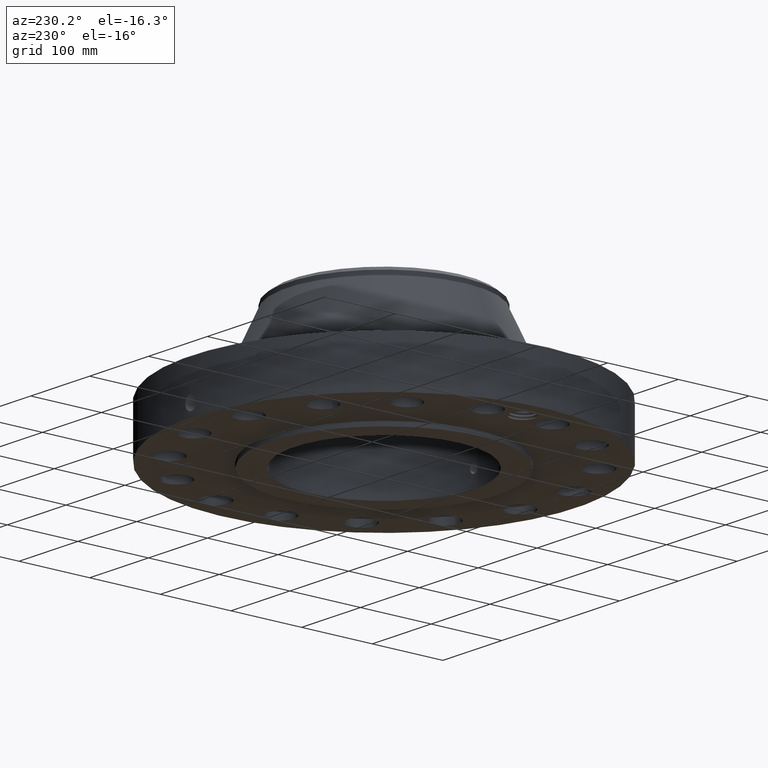
[diagram: clean part render]
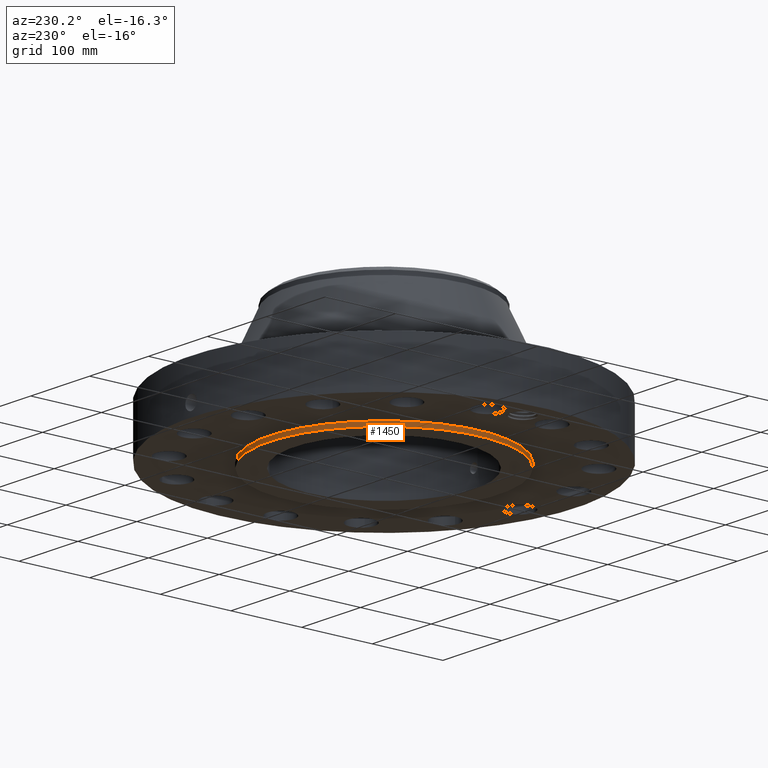
[diagram: same view with one face highlighted and labeled with its STEP entity id]
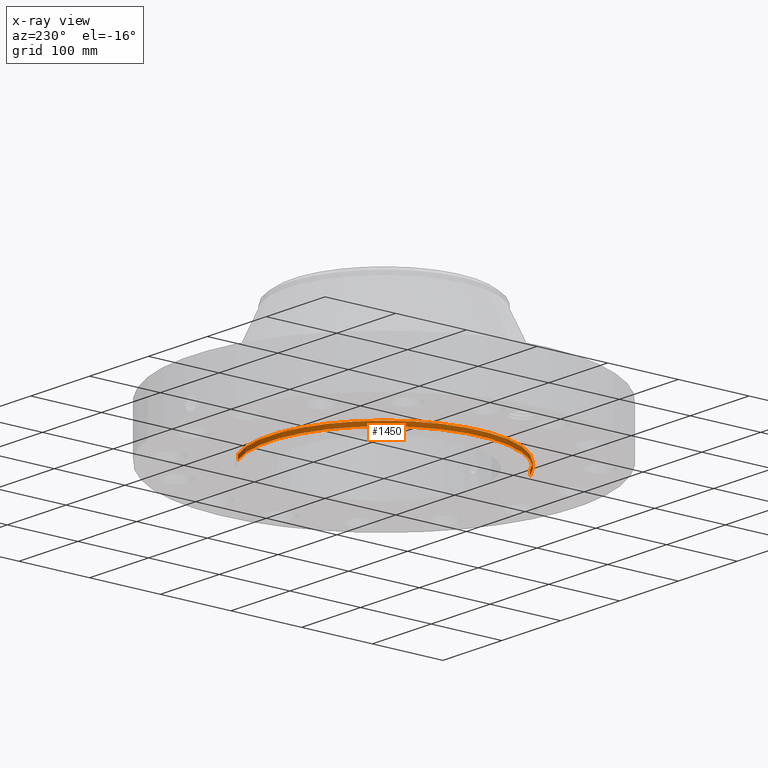
[diagram: x-ray of the same camera — body ghosted, the highlighted face saturated]
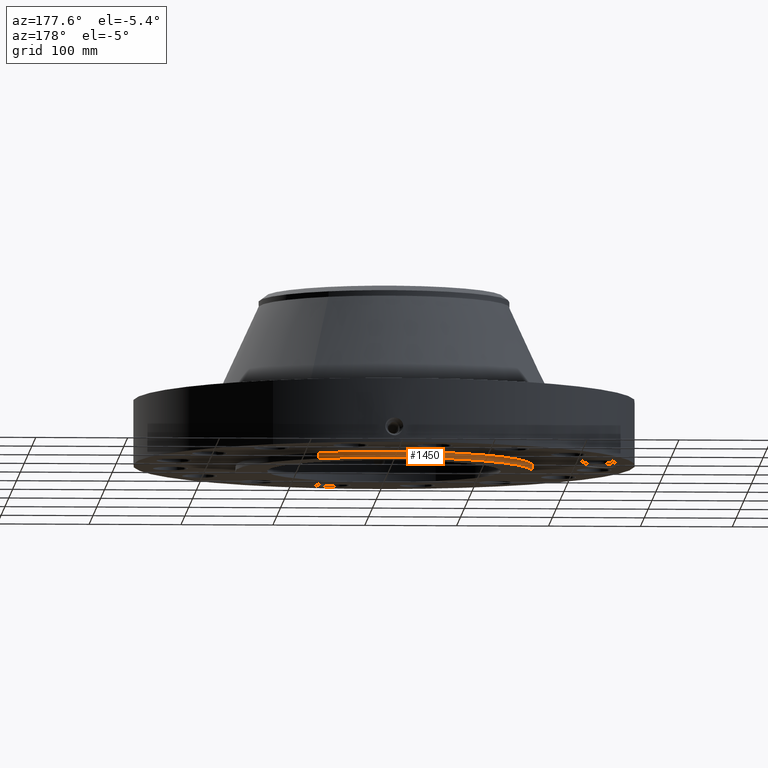
[diagram: same view with one face highlighted and labeled with its STEP entity id]
A machine part, auxiliary view. The second image highlights one B-rep face of the part: STEP entity #1450.
The next image is the same camera in x-ray: the body ghosted, the highlighted face saturated — about 0% of this face is hidden behind the body in this view.
A second angle (auxiliary view) of the same face is appended — the face is thin or edge-on in the first view.
In plain terms, the highlighted cylindrical surface (partial cylindrical patch) has radius 161.925 mm, axis along (0, 0, -1).
Its self-contained STEP definition (entity closure, byte-faithful):
#262=AXIS2_PLACEMENT_3D('Circle Axis2P3D',#260,#261,$) ;
#1411=AXIS2_PLACEMENT_3D('Cylinder Axis2P3D',#1408,#1409,#1410) ;
#1441=AXIS2_PLACEMENT_3D('Circle Axis2P3D',#1439,#1440,$) ;
#255=CARTESIAN_POINT('Vertex',(3.05633780861,5.59458883207,0.250000000001)) ;
#257=CARTESIAN_POINT('Vertex',(-3.05633780861,-5.59458883207,0.250000000001)) ;
#260=CARTESIAN_POINT('Axis2P3D Location',(0.,0.,0.250000000001)) ;
#1408=CARTESIAN_POINT('Axis2P3D Location',(0.,0.,3.75000000001)) ;
#1417=CARTESIAN_POINT('Vertex',(3.05633780861,5.59458883207,5.59482469102E-016)) ;
#1419=CARTESIAN_POINT('Vertex',(-3.05633780861,-5.59458883207,5.59482469102E-016)) ;
#1422=CARTESIAN_POINT('Line Origine',(3.05633780861,5.59458883207,0.125000000001)) ;
#1427=CARTESIAN_POINT('Line Origine',(-3.05633780861,-5.59458883207,0.125000000001)) ;
#1439=CARTESIAN_POINT('Axis2P3D Location',(0.,0.,5.59482469102E-016)) ;
#261=DIRECTION('Axis2P3D Direction',(0.,0.,-0.0393700787402)) ;
#1409=DIRECTION('Axis2P3D Direction',(0.,0.,-0.0393700787402)) ;
#1410=DIRECTION('Axis2P3D XDirection',(-0.0188750212049,-0.0345504945626,0.)) ;
#1423=DIRECTION('Vector Direction',(0.,0.,-0.0393700787402)) ;
#1428=DIRECTION('Vector Direction',(0.,0.,-0.0393700787402)) ;
#1440=DIRECTION('Axis2P3D Direction',(0.,0.,-0.0393700787402)) ;
#1424=VECTOR('Line Direction',#1423,0.0393700787402) ;
#1429=VECTOR('Line Direction',#1428,0.0393700787402) ;
#1445=ORIENTED_EDGE('',*,*,#1443,.F.) ;
#1446=ORIENTED_EDGE('',*,*,#1431,.T.) ;
#1447=ORIENTED_EDGE('',*,*,#264,.T.) ;
#1448=ORIENTED_EDGE('',*,*,#1426,.F.) ;
#1450=ADVANCED_FACE('PartBody',(#1449),#1412,.T.) ;
#263=CIRCLE('generated circle',#262,6.37500000003) ;
#1442=CIRCLE('generated circle',#1441,6.37500000003) ;
#1412=CYLINDRICAL_SURFACE('generated cylinder',#1411,6.37500000003) ;
#264=EDGE_CURVE('',#258,#256,#263,.T.) ;
#1426=EDGE_CURVE('',#1418,#256,#1425,.F.) ;
#1431=EDGE_CURVE('',#1420,#258,#1430,.F.) ;
#1443=EDGE_CURVE('',#1420,#1418,#1442,.T.) ;
#1444=EDGE_LOOP('',(#1445,#1446,#1447,#1448)) ;
#1449=FACE_OUTER_BOUND('',#1444,.T.) ;
#1425=LINE('Line',#1422,#1424) ;
#1430=LINE('Line',#1427,#1429) ;
#256=VERTEX_POINT('',#255) ;
#258=VERTEX_POINT('',#257) ;
#1418=VERTEX_POINT('',#1417) ;
#1420=VERTEX_POINT('',#1419) ;